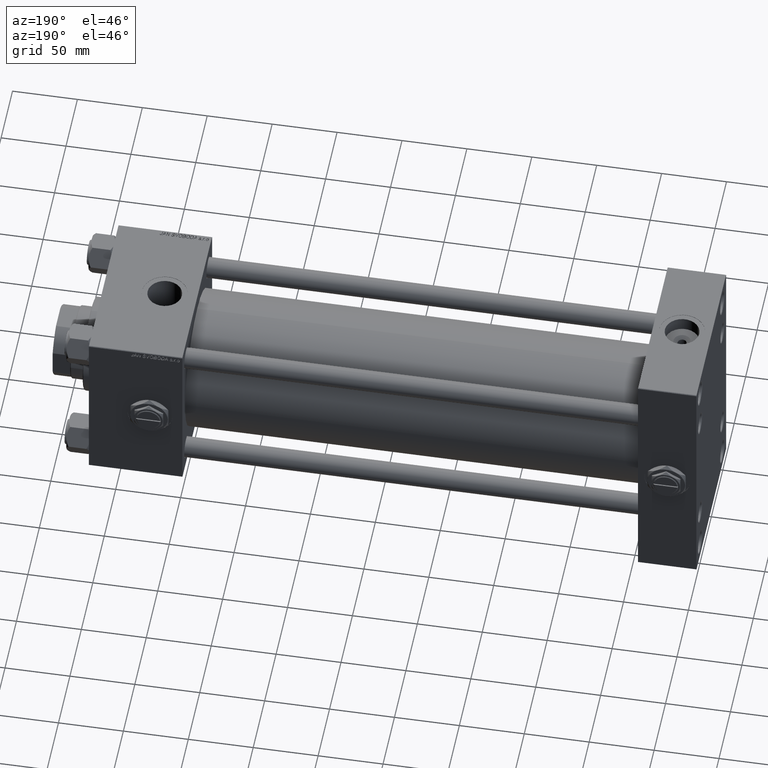
[diagram: clean part render]
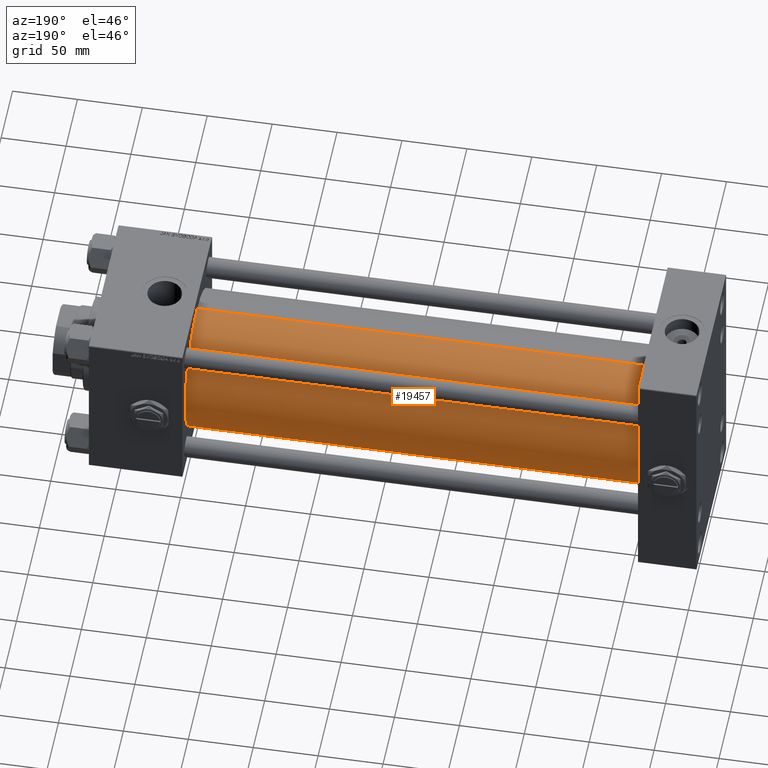
[diagram: same view with one face highlighted and labeled with its STEP entity id]
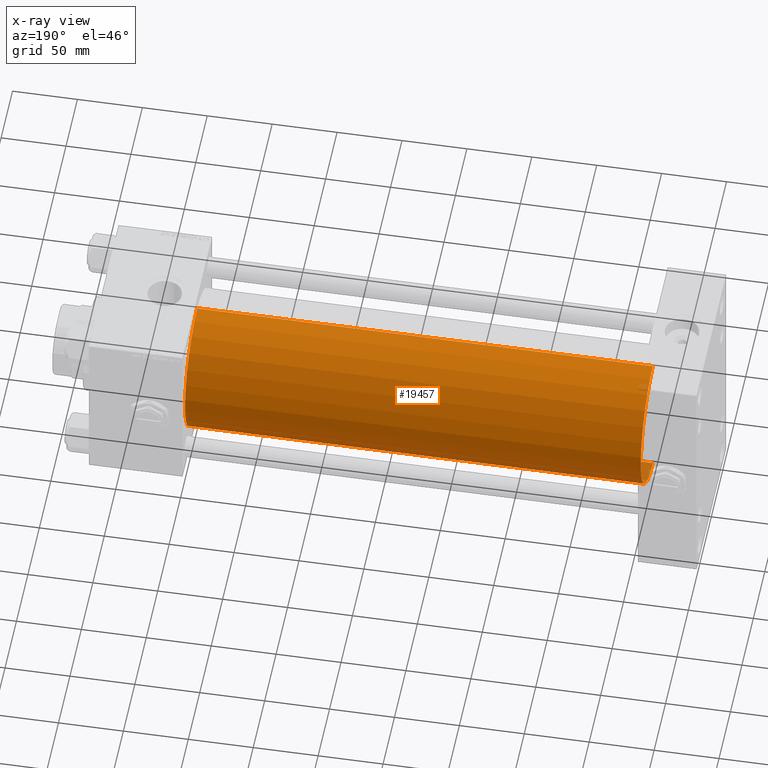
[diagram: x-ray of the same camera — body ghosted, the highlighted face saturated]
A machine part, auxiliary view. The second image highlights one B-rep face of the part: STEP entity #19457.
The next image is the same camera in x-ray: the body ghosted, the highlighted face saturated — about 0% of this face is hidden behind the body in this view.
In plain terms, the highlighted cylindrical surface (partial cylindrical patch) has radius 53 mm, axis along (-1, -0, -0).
Its self-contained STEP definition (entity closure, byte-faithful):
#2797 = DIRECTION ( 'NONE',  ( -1.000000000000000000, -0.000000000000000000, -0.000000000000000000 ) ) ;
#3764 = CARTESIAN_POINT ( 'NONE',  ( 395.9999999999999432, 3.888542821515762466E-15, -53.00000000000000711 ) ) ;
#5846 = EDGE_LOOP ( 'NONE', ( #34197, #15119, #23545, #50872 ) ) ;
#6532 = CARTESIAN_POINT ( 'NONE',  ( 395.9999999999999432, -2.602085213965210642E-15, 53.00000000000000711 ) ) ;
#6962 = EDGE_CURVE ( 'NONE', #15147, #35505, #19190, .T. ) ;
#8365 = CARTESIAN_POINT ( 'NONE',  ( 395.9999999999999432, -2.602085213965210642E-15, 53.00000000000000711 ) ) ;
#11982 = DIRECTION ( 'NONE',  ( 1.000000000000000000, 0.000000000000000000, 0.000000000000000000 ) ) ;
#15119 = ORIENTED_EDGE ( 'NONE', *, *, #42786, .T. ) ;
#15147 = VERTEX_POINT ( 'NONE', #29496 ) ;
#15234 = LINE ( 'NONE', #3764, #43807 ) ;
#19190 = CIRCLE ( 'NONE', #25995, 53.00000000000000711 ) ;
#19457 = ADVANCED_FACE ( 'NONE', ( #45584 ), #24622, .T. ) ;
#23545 = ORIENTED_EDGE ( 'NONE', *, *, #6962, .T. ) ;
#23770 = CARTESIAN_POINT ( 'NONE',  ( 44.99999999999998579, -2.602085213965210642E-15, 53.00000000000000711 ) ) ;
#24622 = CYLINDRICAL_SURFACE ( 'NONE', #39055, 53.00000000000000711 ) ;
#25008 = DIRECTION ( 'NONE',  ( 0.000000000000000000, 0.000000000000000000, -1.000000000000000000 ) ) ;
#25138 = DIRECTION ( 'NONE',  ( 0.000000000000000000, 0.000000000000000000, 1.000000000000000000 ) ) ;
#25995 = AXIS2_PLACEMENT_3D ( 'NONE', #47932, #35457, #27750 ) ;
#27750 = DIRECTION ( 'NONE',  ( 0.000000000000000000, 0.000000000000000000, 1.000000000000000000 ) ) ;
#29496 = CARTESIAN_POINT ( 'NONE',  ( 44.99999999999998579, 3.888542821515762466E-15, -53.00000000000000711 ) ) ;
#31933 = VECTOR ( 'NONE', #2797, 1000.000000000000000 ) ;
#32466 = CARTESIAN_POINT ( 'NONE',  ( 395.9999999999999432, -2.602085213965210642E-15, 0.000000000000000000 ) ) ;
#34197 = ORIENTED_EDGE ( 'NONE', *, *, #36994, .F. ) ;
#35457 = DIRECTION ( 'NONE',  ( 1.000000000000000000, -0.000000000000000000, 0.000000000000000000 ) ) ;
#35505 = VERTEX_POINT ( 'NONE', #23770 ) ;
#36314 = CARTESIAN_POINT ( 'NONE',  ( 395.9999999999999432, -2.602085213965210642E-15, 0.000000000000000000 ) ) ;
#36994 = EDGE_CURVE ( 'NONE', #38890, #39643, #47032, .T. ) ;
#38890 = VERTEX_POINT ( 'NONE', #43463 ) ;
#39055 = AXIS2_PLACEMENT_3D ( 'NONE', #36314, #40815, #25138 ) ;
#39643 = VERTEX_POINT ( 'NONE', #8365 ) ;
#40815 = DIRECTION ( 'NONE',  ( -1.000000000000000000, -0.000000000000000000, -0.000000000000000000 ) ) ;
#41904 = AXIS2_PLACEMENT_3D ( 'NONE', #32466, #11982, #25008 ) ;
#42402 = EDGE_CURVE ( 'NONE', #39643, #35505, #42959, .T. ) ;
#42786 = EDGE_CURVE ( 'NONE', #38890, #15147, #15234, .T. ) ;
#42959 = LINE ( 'NONE', #6532, #31933 ) ;
#43463 = CARTESIAN_POINT ( 'NONE',  ( 395.9999999999999432, 3.888542821515762466E-15, -53.00000000000000711 ) ) ;
#43807 = VECTOR ( 'NONE', #48437, 1000.000000000000000 ) ;
#45584 = FACE_OUTER_BOUND ( 'NONE', #5846, .T. ) ;
#47032 = CIRCLE ( 'NONE', #41904, 53.00000000000000711 ) ;
#47932 = CARTESIAN_POINT ( 'NONE',  ( 44.99999999999998579, -2.602085213965210642E-15, 0.000000000000000000 ) ) ;
#48437 = DIRECTION ( 'NONE',  ( -1.000000000000000000, -0.000000000000000000, -0.000000000000000000 ) ) ;
#50872 = ORIENTED_EDGE ( 'NONE', *, *, #42402, .F. ) ;